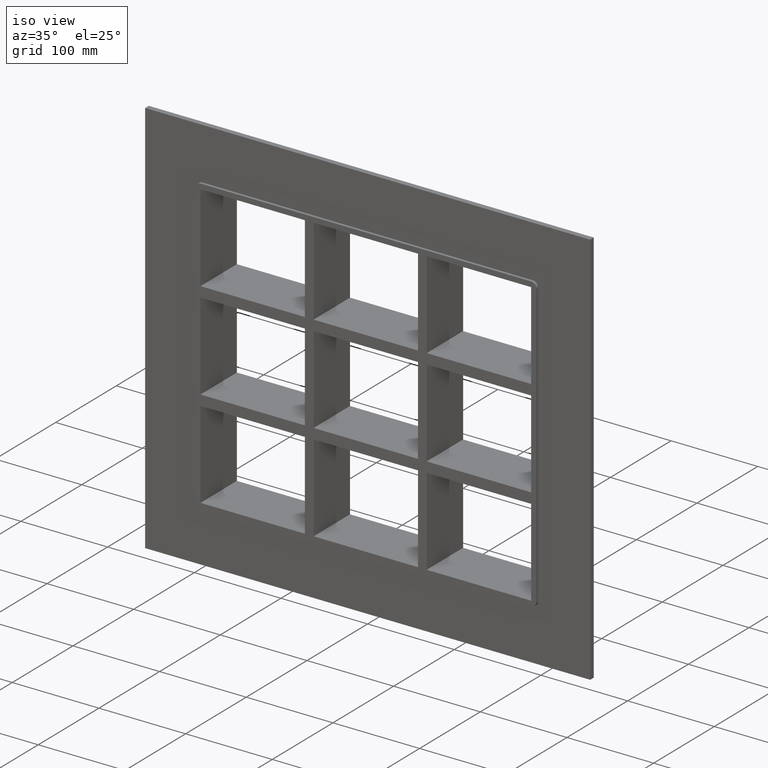
[diagram: clean part render]
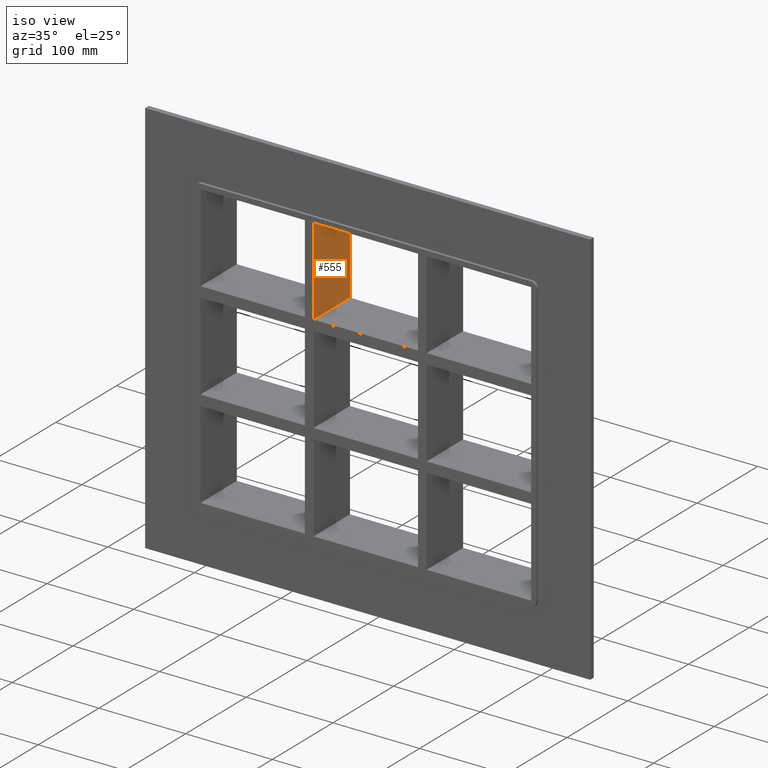
[diagram: same view with one face highlighted and labeled with its STEP entity id]
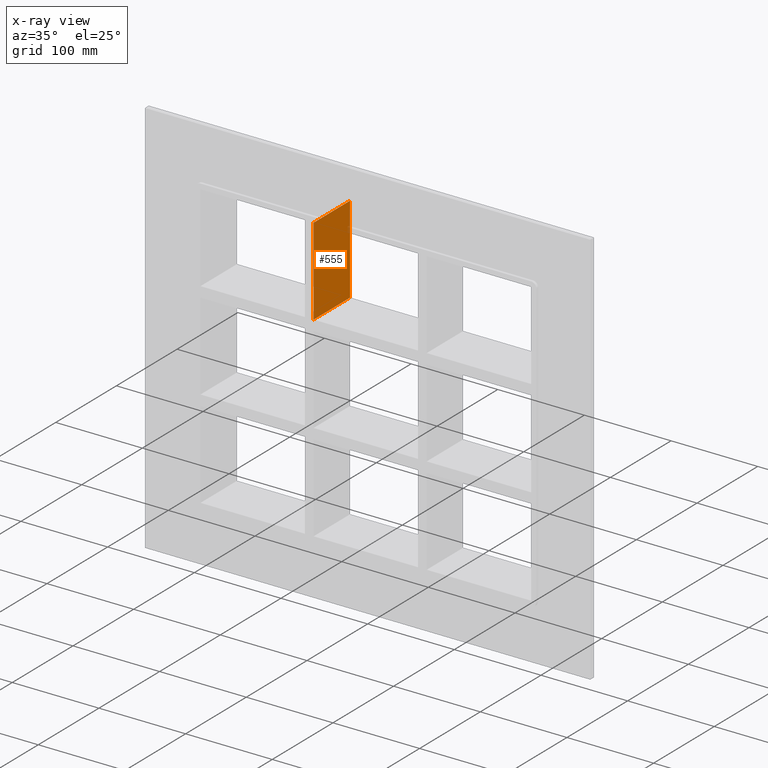
[diagram: x-ray of the same camera — body ghosted, the highlighted face saturated]
A machine part, iso view. The second image highlights one B-rep face of the part: STEP entity #555.
The next image is the same camera in x-ray: the body ghosted, the highlighted face saturated — about 1% of this face is hidden behind the body in this view.
In plain terms, the highlighted planar face has unit normal (1, 0, 0).
Its self-contained STEP definition (entity closure, byte-faithful):
#283=CARTESIAN_POINT('',(-60.249999999996362,57.0,62.499999999999893));
#284=VERTEX_POINT('',#283);
#291=CARTESIAN_POINT('',(-60.249999999996362,-3.0,62.499999999999893));
#292=VERTEX_POINT('',#291);
#293=CARTESIAN_POINT('',(-60.249999999996362,-3.0,62.499999999999893));
#294=DIRECTION('',(0.0,1.0,0.0));
#295=VECTOR('',#294,60.0);
#296=LINE('',#293,#295);
#297=EDGE_CURVE('',#292,#284,#296,.T.);
#525=CARTESIAN_POINT('',(-60.249999999996362,-3.0,163.50000000000006));
#526=DIRECTION('',(1.0,0.0,0.0));
#527=DIRECTION('',(0.0,0.0,-1.0));
#528=AXIS2_PLACEMENT_3D('',#525,#526,#527);
#529=PLANE('',#528);
#530=ORIENTED_EDGE('',*,*,#297,.T.);
#531=CARTESIAN_POINT('',(-60.249999999996362,57.0,163.50000000000006));
#532=VERTEX_POINT('',#531);
#533=CARTESIAN_POINT('',(-60.249999999996362,57.0,163.50000000000006));
#534=DIRECTION('',(0.0,0.0,-1.0));
#535=VECTOR('',#534,101.00000000000016);
#536=LINE('',#533,#535);
#537=EDGE_CURVE('',#532,#284,#536,.T.);
#538=ORIENTED_EDGE('',*,*,#537,.F.);
#539=CARTESIAN_POINT('',(-60.249999999996362,-3.0,163.50000000000006));
#540=VERTEX_POINT('',#539);
#541=CARTESIAN_POINT('',(-60.249999999996362,-3.0,163.50000000000006));
#542=DIRECTION('',(0.0,1.0,0.0));
#543=VECTOR('',#542,60.000000000000007);
#544=LINE('',#541,#543);
#545=EDGE_CURVE('',#540,#532,#544,.T.);
#546=ORIENTED_EDGE('',*,*,#545,.F.);
#547=CARTESIAN_POINT('',(-60.249999999996362,-3.0,163.50000000000006));
#548=DIRECTION('',(0.0,0.0,-1.0));
#549=VECTOR('',#548,101.00000000000016);
#550=LINE('',#547,#549);
#551=EDGE_CURVE('',#540,#292,#550,.T.);
#552=ORIENTED_EDGE('',*,*,#551,.T.);
#553=EDGE_LOOP('',(#530,#538,#546,#552));
#554=FACE_OUTER_BOUND('',#553,.T.);
#555=ADVANCED_FACE('',(#554),#529,.T.);